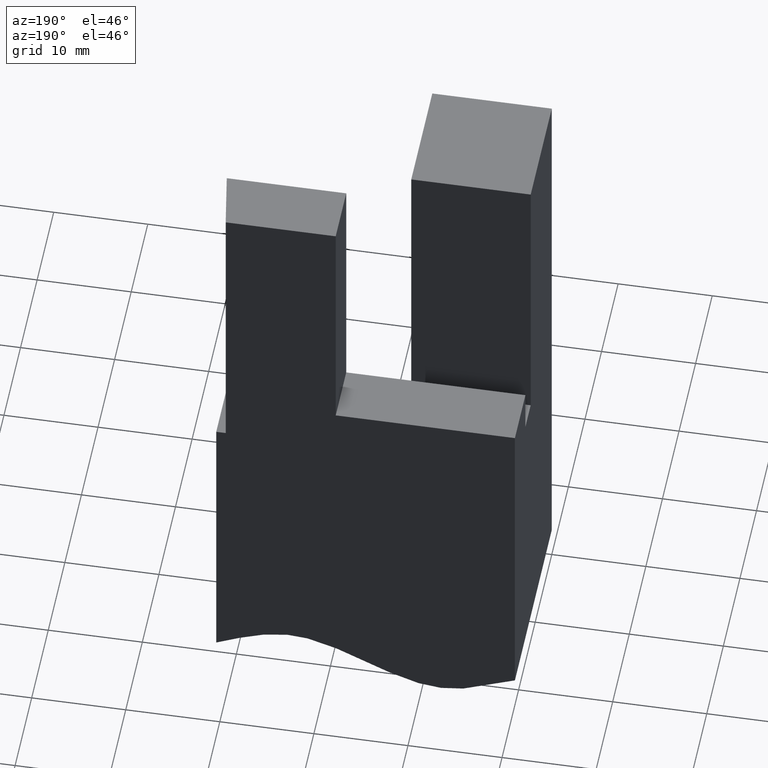
[diagram: clean part render]
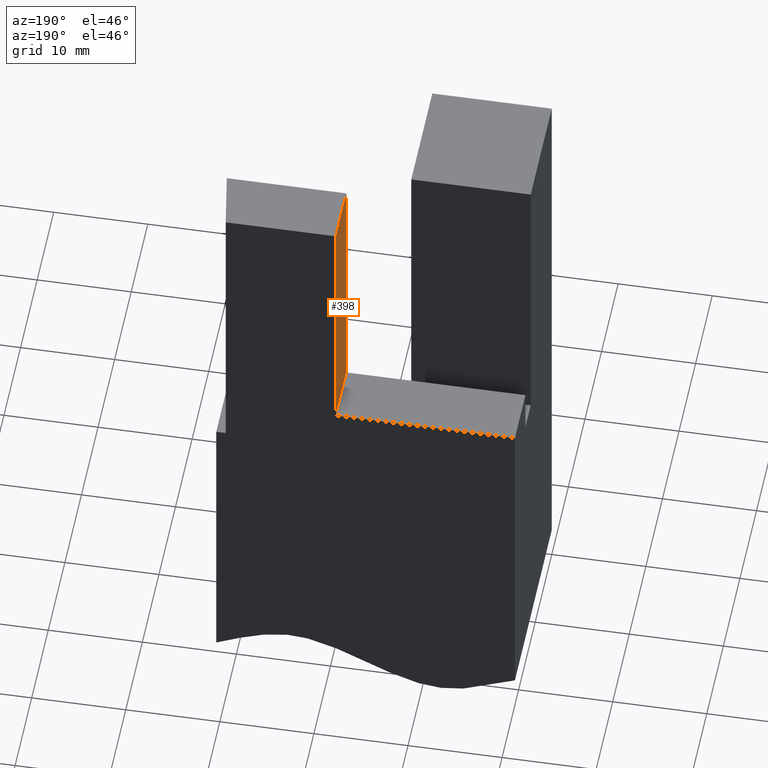
[diagram: same view with one face highlighted and labeled with its STEP entity id]
A machine part, auxiliary view. The second image highlights one B-rep face of the part: STEP entity #398.
In plain terms, the highlighted planar face has unit normal (1, 0, 0).
Its self-contained STEP definition (entity closure, byte-faithful):
#126=VECTOR('',#450,1.);
#129=VECTOR('',#454,1.);
#130=VECTOR('',#455,1.);
#131=VECTOR('',#456,1.);
#165=LINE('',#535,#126);
#168=LINE('',#541,#129);
#169=LINE('',#543,#130);
#170=LINE('',#545,#131);
#203=VERTEX_POINT('',#534);
#204=VERTEX_POINT('',#536);
#206=VERTEX_POINT('',#542);
#207=VERTEX_POINT('',#544);
#242=EDGE_CURVE('',#204,#203,#165,.T.);
#245=EDGE_CURVE('',#206,#203,#168,.T.);
#246=EDGE_CURVE('',#207,#206,#169,.T.);
#247=EDGE_CURVE('',#204,#207,#170,.T.);
#295=ORIENTED_EDGE('',*,*,#245,.F.);
#296=ORIENTED_EDGE('',*,*,#246,.F.);
#297=ORIENTED_EDGE('',*,*,#247,.F.);
#298=ORIENTED_EDGE('',*,*,#242,.T.);
#362=EDGE_LOOP('',(#295,#296,#297,#298));
#380=FACE_BOUND('',#362,.T.);
#398=ADVANCED_FACE('',(#380),#620,.F.);
#416=AXIS2_PLACEMENT_3D('',#540,#453,$);
#450=DIRECTION('',(0.,-1.,0.));
#453=DIRECTION('',(1.,0.,0.));
#454=DIRECTION('',(0.,0.,-1.));
#455=DIRECTION('',(0.,-1.,0.));
#456=DIRECTION('',(0.,0.,1.));
#534=CARTESIAN_POINT('',(0.749999999999996,0.625000000000008,-1.0625));
#535=CARTESIAN_POINT('',(0.749999999999996,0.875,-1.0625));
#536=CARTESIAN_POINT('',(0.749999999999996,0.875,-1.0625));
#540=CARTESIAN_POINT('',(0.749999999999996,0.749999999999998,0.));
#541=CARTESIAN_POINT('',(0.749999999999996,0.624999999999996,0.));
#542=CARTESIAN_POINT('',(0.749999999999996,0.624999999999996,0.));
#543=CARTESIAN_POINT('',(0.749999999999996,0.593749999999999,0.));
#544=CARTESIAN_POINT('',(0.749999999999996,0.875,0.));
#545=CARTESIAN_POINT('',(0.749999999999996,0.875,0.));
#620=PLANE('',#416);